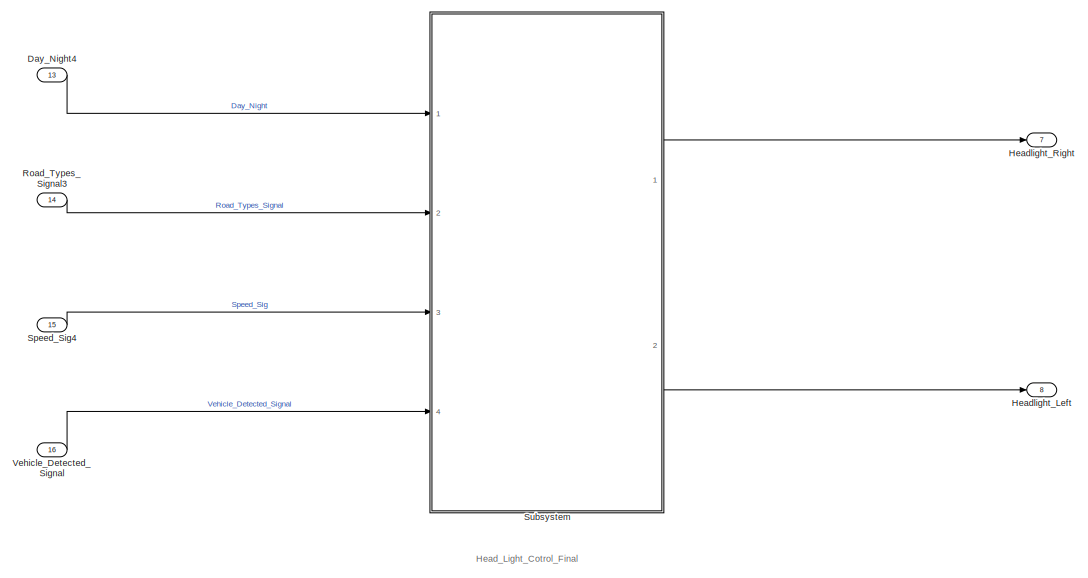
[diagram: root canvas - part 1/5, top center region]
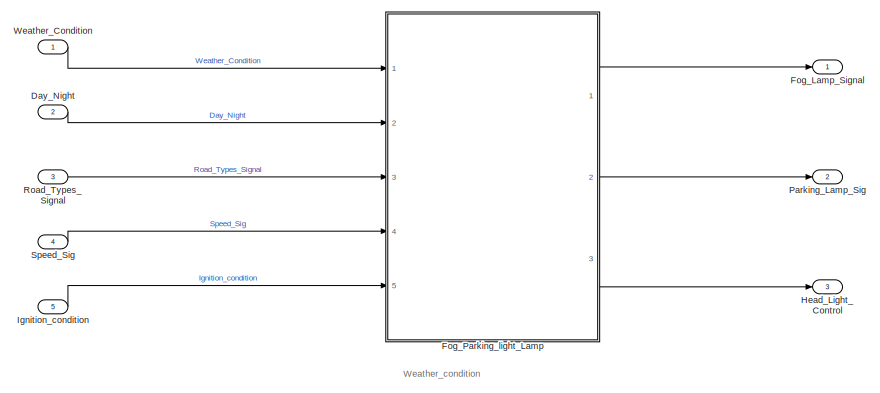
[diagram: root canvas - part 2/5, top left region]
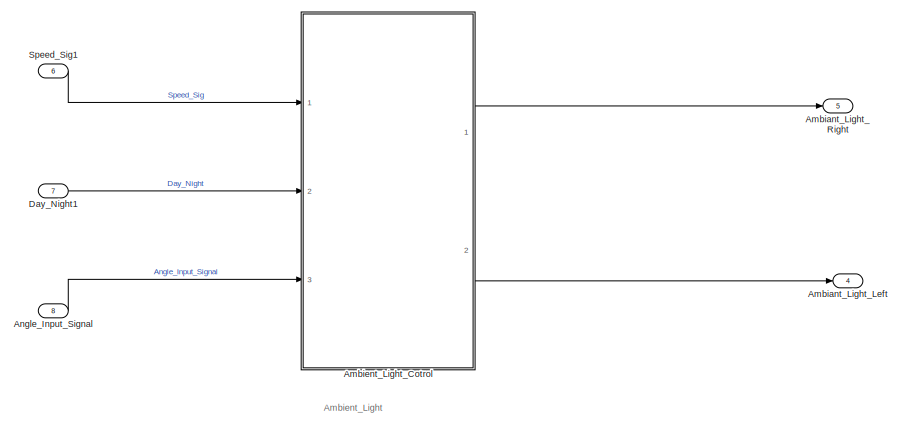
[diagram: root canvas - part 3/5, middle left region]
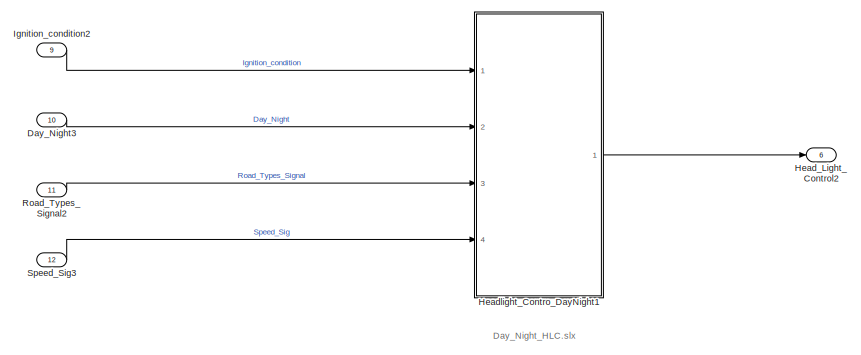
[diagram: root canvas - part 4/5, central region]
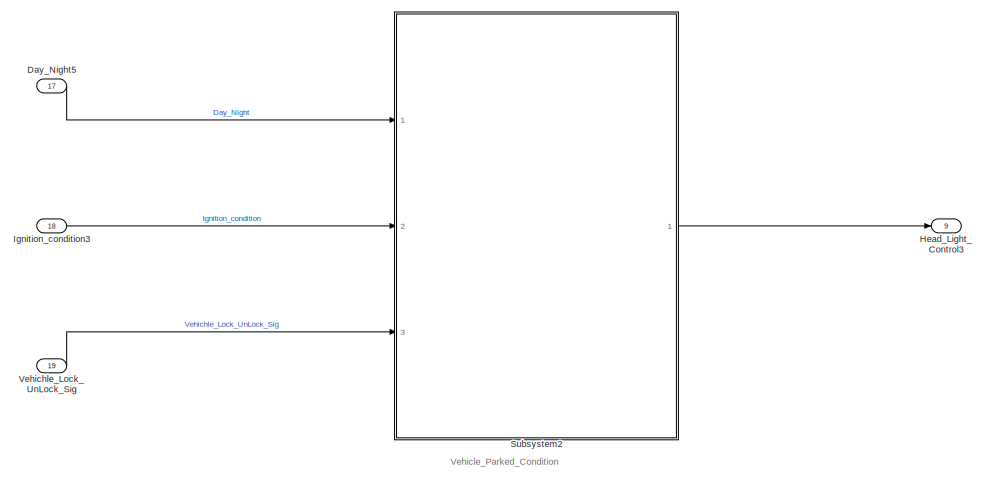
[diagram: root canvas - part 5/5, bottom right region]
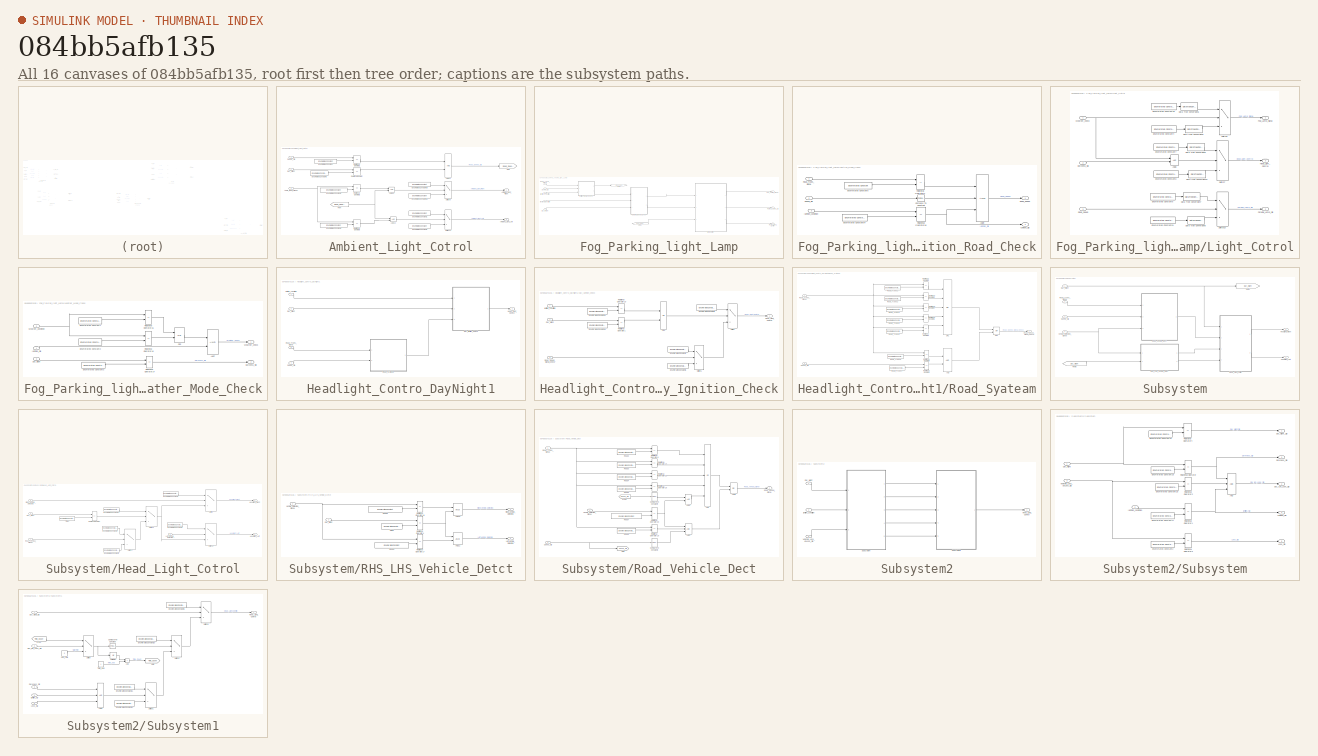
[diagram: thumbnail index - all 16 canvases of the model, root first then tree order]
MODEL slx_084bb5afb135
KIND model
CONFIG AbsTol = auto
CONFIG EnableMultiTasking = off
CONFIG FixedStep = auto
CONFIG MaxStep = auto
CONFIG MinStep = auto
CONFIG RelTol = 1e-3
CONFIG SampleTimeConstraint = Unconstrained
CONFIG Solver = VariableStepAuto
CONFIG SolverName = VariableStepAuto
CONFIG StartTime = 0.0
CONFIG StopTime = 10.0
BLOCK [Outport] Ambiant_Light_Left
  Port = 4
BLOCK [Outport] Ambiant_Light_Right
  Port = 5
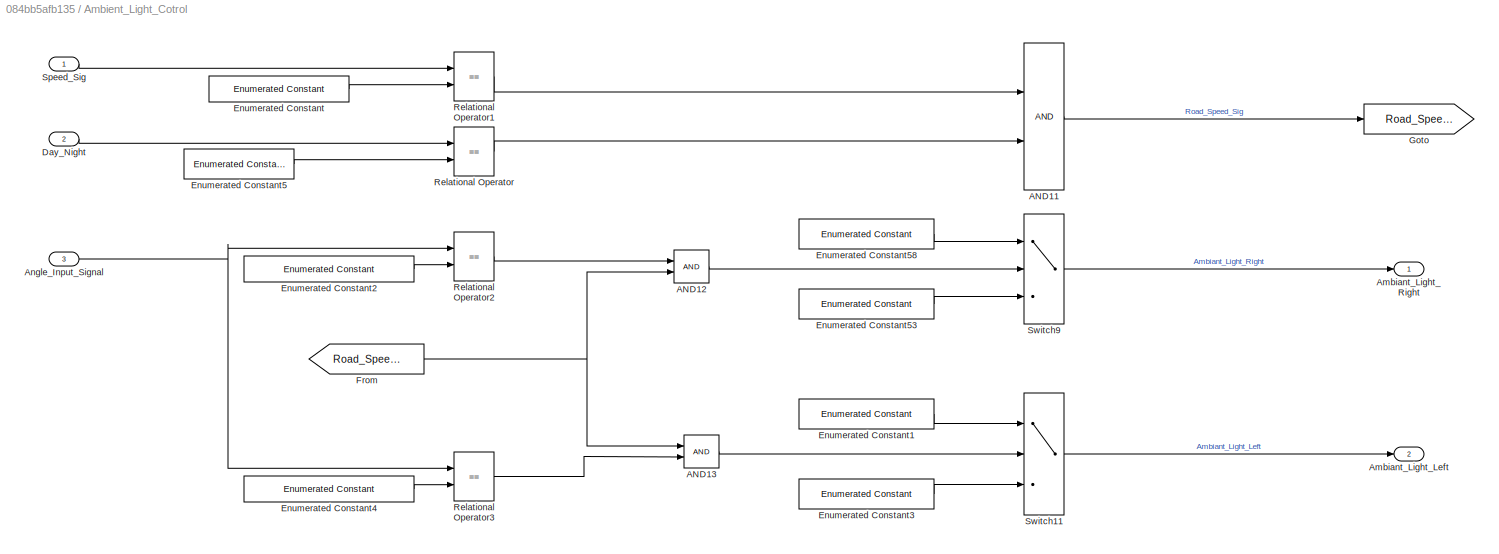
BLOCK [SubSystem] Ambient_Light_Cotrol
  Description = This System is use for cotrol abbiant Light Of cars and other havey loded vehicles
  Ports = [3, 2]
  RequestExecContextInheritance = off
BLOCK [Logic] Ambient_Light_Cotrol/AND11
  AllPortsSameDT = off
  Ports = [2, 1]
BLOCK [Logic] Ambient_Light_Cotrol/AND12
  AllPortsSameDT = off
  Ports = [2, 1]
BLOCK [Logic] Ambient_Light_Cotrol/AND13
  AllPortsSameDT = off
  Ports = [2, 1]
BLOCK [Outport] Ambient_Light_Cotrol/Ambiant_Light_Left
  Port = 2
BLOCK [Outport] Ambient_Light_Cotrol/Ambiant_Light_Right
BLOCK [Inport] Ambient_Light_Cotrol/Angle_Input_Signal
  Port = 3
BLOCK [Inport] Ambient_Light_Cotrol/Day_Night
  Port = 2
BLOCK [Reference] Ambient_Light_Cotrol/Enumerated Constant  REF=simulink/Sources/Enumerated
Constant
  Ports = [0, 1]
  SourceBlock = simulink/Sources/Enumerated\nConstant
  SourceProductBaseCode = SL
  SourceType = Enumerated Constant
BLOCK [Reference] Ambient_Light_Cotrol/Enumerated Constant1  REF=simulink/Sources/Enumerated
Constant
  Ports = [0, 1]
  SourceBlock = simulink/Sources/Enumerated\nConstant
  SourceProductBaseCode = SL
  SourceType = Enumerated Constant
BLOCK [Reference] Ambient_Light_Cotrol/Enumerated Constant2  REF=simulink/Sources/Enumerated
Constant
  Ports = [0, 1]
  SourceBlock = simulink/Sources/Enumerated\nConstant
  SourceProductBaseCode = SL
  SourceType = Enumerated Constant
BLOCK [Reference] Ambient_Light_Cotrol/Enumerated Constant3  REF=simulink/Sources/Enumerated
Constant
  Ports = [0, 1]
  SourceBlock = simulink/Sources/Enumerated\nConstant
  SourceProductBaseCode = SL
  SourceType = Enumerated Constant
BLOCK [Reference] Ambient_Light_Cotrol/Enumerated Constant4  REF=simulink/Sources/Enumerated
Constant
  Ports = [0, 1]
  SourceBlock = simulink/Sources/Enumerated\nConstant
  SourceProductBaseCode = SL
  SourceType = Enumerated Constant
BLOCK [Reference] Ambient_Light_Cotrol/Enumerated Constant5  REF=simulink/Sources/Enumerated
Constant
  Ports = [0, 1]
  SourceBlock = simulink/Sources/Enumerated\nConstant
  SourceProductBaseCode = SL
  SourceType = Enumerated Constant
BLOCK [Reference] Ambient_Light_Cotrol/Enumerated Constant53  REF=simulink/Sources/Enumerated
Constant
  Ports = [0, 1]
  SourceBlock = simulink/Sources/Enumerated\nConstant
  SourceProductBaseCode = SL
  SourceType = Enumerated Constant
BLOCK [Reference] Ambient_Light_Cotrol/Enumerated Constant58  REF=simulink/Sources/Enumerated
Constant
  Ports = [0, 1]
  SourceBlock = simulink/Sources/Enumerated\nConstant
  SourceProductBaseCode = SL
  SourceType = Enumerated Constant
BLOCK [From] Ambient_Light_Cotrol/From
  GotoTag = Road_Speed_Sig
BLOCK [Goto] Ambient_Light_Cotrol/Goto
  GotoTag = Road_Speed_Sig
BLOCK [RelationalOperator] Ambient_Light_Cotrol/Relational Operator
  InputSameDT = off
  Operator = ==
  OutDataTypeStr = boolean
  Ports = [2, 1]
  RndMeth = Simplest
BLOCK [RelationalOperator] Ambient_Light_Cotrol/Relational Operator1
  InputSameDT = off
  Operator = ==
  OutDataTypeStr = boolean
  Ports = [2, 1]
  RndMeth = Simplest
BLOCK [RelationalOperator] Ambient_Light_Cotrol/Relational Operator2
  InputSameDT = off
  Operator = ==
  OutDataTypeStr = boolean
  Ports = [2, 1]
  RndMeth = Simplest
BLOCK [RelationalOperator] Ambient_Light_Cotrol/Relational Operator3
  InputSameDT = off
  Operator = ==
  Ports = [2, 1]
  RndMeth = Simplest
BLOCK [Inport] Ambient_Light_Cotrol/Speed_Sig
BLOCK [Switch] Ambient_Light_Cotrol/Switch11
  Criteria = u2 ~= 0
  InputSameDT = off
  OutDataTypeStr = Inherit: Inherit via back propagation
  SaturateOnIntegerOverflow = off
BLOCK [Switch] Ambient_Light_Cotrol/Switch9
  Criteria = u2 ~= 0
  InputSameDT = off
  OutDataTypeStr = Inherit: Inherit via back propagation
  SaturateOnIntegerOverflow = off
BLOCK [Inport] Angle_Input_Signal
  Port = 8
BLOCK [Inport] Day_Night
  Port = 2
BLOCK [Inport] Day_Night1
  Port = 7
BLOCK [Inport] Day_Night3
  Port = 10
BLOCK [Inport] Day_Night4
  Port = 13
BLOCK [Inport] Day_Night5
  Port = 17
BLOCK [Outport] Fog_Lamp_Signal
BLOCK [SubSystem] Fog_Parking_light_Lamp
  Description = Cotrol of Fog lamp_Parking Light and hedlight in differant modes
  Ports = [5, 3]
  RequestExecContextInheritance = off
BLOCK [Inport] Fog_Parking_light_Lamp/Day_Night
  Port = 2
BLOCK [Outport] Fog_Parking_light_Lamp/Fog_Lamp_Signal
BLOCK [From] Fog_Parking_light_Lamp/From1
  GotoTag = Road_Speed
BLOCK [Goto] Fog_Parking_light_Lamp/Goto2
  GotoTag = Road_Speed
BLOCK [Outport] Fog_Parking_light_Lamp/Head_Light_Control
  Port = 3
BLOCK [SubSystem] Fog_Parking_light_Lamp/Ignition_Road_Check
  Description = ignition and Road_Check
  Ports = [3, 2]
  RequestExecContextInheritance = off
BLOCK [Logic] Fog_Parking_light_Lamp/Ignition_Road_Check/AND9
  AllPortsSameDT = off
  Inputs = 3
  OutDataTypeStr = boolean
  Ports = [3, 1]
BLOCK [Reference] Fog_Parking_light_Lamp/Ignition_Road_Check/Compare To Constant  REF=simulink/Logic and Bit
Operations/Compare
To Constant
  Ports = [1, 1]
  SourceBlock = simulink/Logic and Bit\nOperations/Compare\nTo Constant
  SourceProductBaseCode = SL
  SourceType = Compare To Constant
BLOCK [Reference] Fog_Parking_light_Lamp/Ignition_Road_Check/Enumerated Constant54  REF=simulink/Sources/Enumerated
Constant
  Ports = [0, 1]
  SourceBlock = simulink/Sources/Enumerated\nConstant
  SourceProductBaseCode = SL
  SourceType = Enumerated Constant
BLOCK [Reference] Fog_Parking_light_Lamp/Ignition_Road_Check/Enumerated Constant6  REF=simulink/Sources/Enumerated
Constant
  Ports = [0, 1]
  SourceBlock = simulink/Sources/Enumerated\nConstant
  SourceProductBaseCode = SL
  SourceType = Enumerated Constant
BLOCK [Outport] Fog_Parking_light_Lamp/Ignition_Road_Check/Ignition_Sig
  Port = 2
BLOCK [Inport] Fog_Parking_light_Lamp/Ignition_Road_Check/Ignition_condition
  Port = 3
BLOCK [RelationalOperator] Fog_Parking_light_Lamp/Ignition_Road_Check/Relational Operator1
  InputSameDT = off
  Operator = ~=
  OutDataTypeStr = boolean
  Ports = [2, 1]
  RndMeth = Simplest
BLOCK [RelationalOperator] Fog_Parking_light_Lamp/Ignition_Road_Check/Relational Operator18
  InputSameDT = off
  Operator = ==
  OutDataTypeStr = boolean
  Ports = [2, 1]
  RndMeth = Simplest
BLOCK [Outport] Fog_Parking_light_Lamp/Ignition_Road_Check/Road_Speed
BLOCK [Inport] Fog_Parking_light_Lamp/Ignition_Road_Check/Road_Types_Signal
BLOCK [Inport] Fog_Parking_light_Lamp/Ignition_Road_Check/Speed_Sig
  Port = 2
BLOCK [Inport] Fog_Parking_light_Lamp/Ignition_condition
  Port = 5
BLOCK [SubSystem] Fog_Parking_light_Lamp/Light_Cotrol
  Description = it control the fog parking and head light
  Ports = [3, 3]
  RequestExecContextInheritance = off
BLOCK [Logic] Fog_Parking_light_Lamp/Light_Cotrol/AND8
  AllPortsSameDT = off
  OutDataTypeStr = boolean
  Ports = [2, 1]
BLOCK [Inport] Fog_Parking_light_Lamp/Light_Cotrol/Darkness_Sig
  Port = 2
BLOCK [DataTypeConversion] Fog_Parking_light_Lamp/Light_Cotrol/Data Type Conversion10
  RndMeth = Floor
  SaturateOnIntegerOverflow = off
BLOCK [DataTypeConversion] Fog_Parking_light_Lamp/Light_Cotrol/Data Type Conversion5
  RndMeth = Floor
  SaturateOnIntegerOverflow = off
BLOCK [DataTypeConversion] Fog_Parking_light_Lamp/Light_Cotrol/Data Type Conversion6
  RndMeth = Floor
  SaturateOnIntegerOverflow = off
BLOCK [DataTypeConversion] Fog_Parking_light_Lamp/Light_Cotrol/Data Type Conversion7
  RndMeth = Floor
  SaturateOnIntegerOverflow = off
BLOCK [DataTypeConversion] Fog_Parking_light_Lamp/Light_Cotrol/Data Type Conversion8
  RndMeth = Floor
  SaturateOnIntegerOverflow = off
BLOCK [DataTypeConversion] Fog_Parking_light_Lamp/Light_Cotrol/Data Type Conversion9
  RndMeth = Floor
  SaturateOnIntegerOverflow = off
BLOCK [Reference] Fog_Parking_light_Lamp/Light_Cotrol/Enumerated Constant4  REF=simulink/Sources/Enumerated
Constant
  Ports = [0, 1]
  SourceBlock = simulink/Sources/Enumerated\nConstant
  SourceProductBaseCode = SL
  SourceType = Enumerated Constant
BLOCK [Reference] Fog_Parking_light_Lamp/Light_Cotrol/Enumerated Constant48  REF=simulink/Sources/Enumerated
Constant
  Ports = [0, 1]
  SourceBlock = simulink/Sources/Enumerated\nConstant
  SourceProductBaseCode = SL
  SourceType = Enumerated Constant
BLOCK [Reference] Fog_Parking_light_Lamp/Light_Cotrol/Enumerated Constant5  REF=simulink/Sources/Enumerated
Constant
  Ports = [0, 1]
  SourceBlock = simulink/Sources/Enumerated\nConstant
  SourceProductBaseCode = SL
  SourceType = Enumerated Constant
BLOCK [Reference] Fog_Parking_light_Lamp/Light_Cotrol/Enumerated Constant51  REF=simulink/Sources/Enumerated
Constant
  Ports = [0, 1]
  SourceBlock = simulink/Sources/Enumerated\nConstant
  SourceProductBaseCode = SL
  SourceType = Enumerated Constant
BLOCK [Reference] Fog_Parking_light_Lamp/Light_Cotrol/Enumerated Constant7  REF=simulink/Sources/Enumerated
Constant
  Ports = [0, 1]
  SourceBlock = simulink/Sources/Enumerated\nConstant
  SourceProductBaseCode = SL
  SourceType = Enumerated Constant
BLOCK [Reference] Fog_Parking_light_Lamp/Light_Cotrol/Enumerated Constant8  REF=simulink/Sources/Enumerated
Constant
  Ports = [0, 1]
  SourceBlock = simulink/Sources/Enumerated\nConstant
  SourceProductBaseCode = SL
  SourceType = Enumerated Constant
BLOCK [Outport] Fog_Parking_light_Lamp/Light_Cotrol/Fog_Lamp_Signal
BLOCK [Outport] Fog_Parking_light_Lamp/Light_Cotrol/Head_Light_Control
  Port = 3
BLOCK [Outport] Fog_Parking_light_Lamp/Light_Cotrol/Parking_Lamp_Sig
  Port = 2
BLOCK [Inport] Fog_Parking_light_Lamp/Light_Cotrol/Road_Speed
  Port = 3
BLOCK [Switch] Fog_Parking_light_Lamp/Light_Cotrol/Switch10
  Criteria = u2 ~= 0
  InputSameDT = off
  OutDataTypeStr = Inherit: Inherit via back propagation
  SaturateOnIntegerOverflow = off
BLOCK [Switch] Fog_Parking_light_Lamp/Light_Cotrol/Switch7
  Criteria = u2 ~= 0
  InputSameDT = off
  OutDataTypeStr = Inherit: Inherit via back propagation
  SaturateOnIntegerOverflow = off
BLOCK [Switch] Fog_Parking_light_Lamp/Light_Cotrol/Switch8
  Criteria = u2 ~= 0
  InputSameDT = off
  OutDataTypeStr = Inherit: Inherit via back propagation
  SaturateOnIntegerOverflow = off
BLOCK [Inport] Fog_Parking_light_Lamp/Light_Cotrol/Weather_Check
BLOCK [Outport] Fog_Parking_light_Lamp/Parking_Lamp_Sig
  Port = 2
BLOCK [Inport] Fog_Parking_light_Lamp/Road_Types_Signal
  Port = 3
BLOCK [Inport] Fog_Parking_light_Lamp/Speed_Sig
  Port = 4
BLOCK [Inport] Fog_Parking_light_Lamp/Weather_Condition
BLOCK [SubSystem] Fog_Parking_light_Lamp/Weather_Mode_Check
  Description = it check weather and raod conditions
  Ports = [3, 2]
  RequestExecContextInheritance = off
BLOCK [Logic] Fog_Parking_light_Lamp/Weather_Mode_Check/AND7
  AllPortsSameDT = off
  OutDataTypeStr = boolean
  Ports = [2, 1]
BLOCK [Outport] Fog_Parking_light_Lamp/Weather_Mode_Check/Darkness_Sig
  Port = 2
BLOCK [Inport] Fog_Parking_light_Lamp/Weather_Mode_Check/Day_Night
  Port = 3
BLOCK [Reference] Fog_Parking_light_Lamp/Weather_Mode_Check/Enumerated Constant1  REF=simulink/Sources/Enumerated
Constant
  Ports = [0, 1]
  SourceBlock = simulink/Sources/Enumerated\nConstant
  SourceProductBaseCode = SL
  SourceType = Enumerated Constant
BLOCK [Reference] Fog_Parking_light_Lamp/Weather_Mode_Check/Enumerated Constant2  REF=simulink/Sources/Enumerated
Constant
  Ports = [0, 1]
  SourceBlock = simulink/Sources/Enumerated\nConstant
  SourceProductBaseCode = SL
  SourceType = Enumerated Constant
BLOCK [Reference] Fog_Parking_light_Lamp/Weather_Mode_Check/Enumerated Constant3  REF=simulink/Sources/Enumerated
Constant
  Ports = [0, 1]
  SourceBlock = simulink/Sources/Enumerated\nConstant
  SourceProductBaseCode = SL
  SourceType = Enumerated Constant
BLOCK [Inport] Fog_Parking_light_Lamp/Weather_Mode_Check/Ignition_Sig
BLOCK [Logic] Fog_Parking_light_Lamp/Weather_Mode_Check/OR2
  AllPortsSameDT = off
  Operator = OR
  OutDataTypeStr = boolean
  Ports = [2, 1]
BLOCK [RelationalOperator] Fog_Parking_light_Lamp/Weather_Mode_Check/Relational Operator14
  InputSameDT = off
  Operator = ==
  OutDataTypeStr = boolean
  Ports = [2, 1]
  RndMeth = Simplest
BLOCK [RelationalOperator] Fog_Parking_light_Lamp/Weather_Mode_Check/Relational Operator15
  InputSameDT = off
  Operator = ==
  OutDataTypeStr = boolean
  Ports = [2, 1]
  RndMeth = Simplest
BLOCK [RelationalOperator] Fog_Parking_light_Lamp/Weather_Mode_Check/Relational Operator16
  InputSameDT = off
  Operator = ==
  OutDataTypeStr = boolean
  Ports = [2, 1]
  RndMeth = Simplest
BLOCK [Outport] Fog_Parking_light_Lamp/Weather_Mode_Check/Weather_Check
BLOCK [Inport] Fog_Parking_light_Lamp/Weather_Mode_Check/Weather_Condition
  Port = 2
BLOCK [Outport] Head_Light_Control
  Port = 3
BLOCK [Outport] Head_Light_Control2
  Port = 6
BLOCK [Outport] Head_Light_Control3
  Port = 9
BLOCK [SubSystem] Headlight_Contro_DayNight1
  Description = testing_dayNight_Control of the cars
  Ports = [4, 1]
  RequestExecContextInheritance = off
BLOCK [SubSystem] Headlight_Contro_DayNight1/Day_Ignition_Check
  Description = check road and ignition condition
  Ports = [3, 1]
  RequestExecContextInheritance = off
BLOCK [Inport] Headlight_Contro_DayNight1/Day_Ignition_Check/Day_Night
  Port = 2
BLOCK [Reference] Headlight_Contro_DayNight1/Day_Ignition_Check/Enumerated Constant15  REF=simulink/Sources/Enumerated
Constant
  Ports = [0, 1]
  SourceBlock = simulink/Sources/Enumerated\nConstant
  SourceProductBaseCode = SL
  SourceType = Enumerated Constant
BLOCK [Reference] Headlight_Contro_DayNight1/Day_Ignition_Check/Enumerated Constant16  REF=simulink/Sources/Enumerated
Constant
  Ports = [0, 1]
  SourceBlock = simulink/Sources/Enumerated\nConstant
  SourceProductBaseCode = SL
  SourceType = Enumerated Constant
BLOCK [Reference] Headlight_Contro_DayNight1/Day_Ignition_Check/Enumerated Constant2  REF=simulink/Sources/Enumerated
Constant
  Ports = [0, 1]
  SourceBlock = simulink/Sources/Enumerated\nConstant
  SourceProductBaseCode = SL
  SourceType = Enumerated Constant
BLOCK [Reference] Headlight_Contro_DayNight1/Day_Ignition_Check/Enumerated Constant5  REF=simulink/Sources/Enumerated
Constant
  Ports = [0, 1]
  SourceBlock = simulink/Sources/Enumerated\nConstant
  SourceProductBaseCode = SL
  SourceType = Enumerated Constant
BLOCK [Reference] Headlight_Contro_DayNight1/Day_Ignition_Check/Enumerated Constant6  REF=simulink/Sources/Enumerated
Constant
  Ports = [0, 1]
  SourceBlock = simulink/Sources/Enumerated\nConstant
  SourceProductBaseCode = SL
  SourceType = Enumerated Constant
BLOCK [Outport] Headlight_Contro_DayNight1/Day_Ignition_Check/Head_Light_Control
BLOCK [Inport] Headlight_Contro_DayNight1/Day_Ignition_Check/Ignition_condition
BLOCK [Logic] Headlight_Contro_DayNight1/Day_Ignition_Check/OR3
  AllPortsSameDT = off
  Operator = OR
  OutDataTypeStr = boolean
  Ports = [2, 1]
BLOCK [RelationalOperator] Headlight_Contro_DayNight1/Day_Ignition_Check/Relational Operator1
  InputSameDT = off
  Operator = ==
  OutDataTypeStr = boolean
  Ports = [2, 1]
  RndMeth = Simplest
BLOCK [RelationalOperator] Headlight_Contro_DayNight1/Day_Ignition_Check/Relational Operator19
  InputSameDT = off
  Operator = ==
  OutDataTypeStr = boolean
  Ports = [2, 1]
  RndMeth = Simplest
BLOCK [Inport] Headlight_Contro_DayNight1/Day_Ignition_Check/Road_Speed_Signal_Check
  Port = 3
BLOCK [Switch] Headlight_Contro_DayNight1/Day_Ignition_Check/Switch
  Criteria = u2 ~= 0
  InputSameDT = off
  OutDataTypeStr = Inherit: Inherit via back propagation
  SaturateOnIntegerOverflow = off
BLOCK [Switch] Headlight_Contro_DayNight1/Day_Ignition_Check/Switch1
  Criteria = u2 ~= 0
  InputSameDT = off
  SaturateOnIntegerOverflow = off
BLOCK [Inport] Headlight_Contro_DayNight1/Day_Night
  Port = 2
BLOCK [Outport] Headlight_Contro_DayNight1/Head_Light_Control
BLOCK [Inport] Headlight_Contro_DayNight1/Ignition_condition
BLOCK [SubSystem] Headlight_Contro_DayNight1/Road_Syateam
  Description = Road check condition
  Ports = [2, 1]
  RequestExecContextInheritance = off
BLOCK [Logic] Headlight_Contro_DayNight1/Road_Syateam/AND
  AllPortsSameDT = off
  OutDataTypeStr = boolean
  Ports = [2, 1]
BLOCK [Logic] Headlight_Contro_DayNight1/Road_Syateam/OR1
  AllPortsSameDT = off
  Inputs = 5
  Operator = OR
  OutDataTypeStr = boolean
  Ports = [5, 1]
BLOCK [Logic] Headlight_Contro_DayNight1/Road_Syateam/OR2
  AllPortsSameDT = off
  Operator = OR
  OutDataTypeStr = boolean
  Ports = [2, 1]
BLOCK [RelationalOperator] Headlight_Contro_DayNight1/Road_Syateam/Relational Operator1
  InputSameDT = off
  Operator = ==
  OutDataTypeStr = boolean
  Ports = [2, 1]
  RndMeth = Simplest
BLOCK [RelationalOperator] Headlight_Contro_DayNight1/Road_Syateam/Relational Operator2
  InputSameDT = off
  Operator = ==
  OutDataTypeStr = boolean
  Ports = [2, 1]
  RndMeth = Simplest
BLOCK [RelationalOperator] Headlight_Contro_DayNight1/Road_Syateam/Relational Operator3
  InputSameDT = off
  Operator = ==
  OutDataTypeStr = boolean
  Ports = [2, 1]
  RndMeth = Simplest
BLOCK [RelationalOperator] Headlight_Contro_DayNight1/Road_Syateam/Relational Operator4
  InputSameDT = off
  Operator = ==
  OutDataTypeStr = boolean
  Ports = [2, 1]
  RndMeth = Simplest
BLOCK [RelationalOperator] Headlight_Contro_DayNight1/Road_Syateam/Relational Operator5
  InputSameDT = off
  Operator = ==
  OutDataTypeStr = boolean
  Ports = [2, 1]
  RndMeth = Simplest
BLOCK [RelationalOperator] Headlight_Contro_DayNight1/Road_Syateam/Relational Operator6
  InputSameDT = off
  Operator = ==
  OutDataTypeStr = boolean
  Ports = [2, 1]
  RndMeth = Simplest
BLOCK [RelationalOperator] Headlight_Contro_DayNight1/Road_Syateam/Relational Operator7
  InputSameDT = off
  Operator = ==
  OutDataTypeStr = boolean
  Ports = [2, 1]
  RndMeth = Simplest
BLOCK [Outport] Headlight_Contro_DayNight1/Road_Syateam/Road_Speed_Signal_Check
BLOCK [Reference] Headlight_Contro_DayNight1/Road_Syateam/Road_Types1  REF=simulink/Sources/Enumerated
Constant
  Ports = [0, 1]
  SourceBlock = simulink/Sources/Enumerated\nConstant
  SourceProductBaseCode = SL
  SourceType = Enumerated Constant
BLOCK [Reference] Headlight_Contro_DayNight1/Road_Syateam/Road_Types2  REF=simulink/Sources/Enumerated
Constant
  Ports = [0, 1]
  SourceBlock = simulink/Sources/Enumerated\nConstant
  SourceProductBaseCode = SL
  SourceType = Enumerated Constant
BLOCK [Reference] Headlight_Contro_DayNight1/Road_Syateam/Road_Types3  REF=simulink/Sources/Enumerated
Constant
  Ports = [0, 1]
  SourceBlock = simulink/Sources/Enumerated\nConstant
  SourceProductBaseCode = SL
  SourceType = Enumerated Constant
BLOCK [Reference] Headlight_Contro_DayNight1/Road_Syateam/Road_Types4  REF=simulink/Sources/Enumerated
Constant
  Ports = [0, 1]
  SourceBlock = simulink/Sources/Enumerated\nConstant
  SourceProductBaseCode = SL
  SourceType = Enumerated Constant
BLOCK [Reference] Headlight_Contro_DayNight1/Road_Syateam/Road_Types5  REF=simulink/Sources/Enumerated
Constant
  Ports = [0, 1]
  SourceBlock = simulink/Sources/Enumerated\nConstant
  SourceProductBaseCode = SL
  SourceType = Enumerated Constant
BLOCK [Reference] Headlight_Contro_DayNight1/Road_Syateam/Road_Types6  REF=simulink/Sources/Enumerated
Constant
  Ports = [0, 1]
  SourceBlock = simulink/Sources/Enumerated\nConstant
  SourceProductBaseCode = SL
  SourceType = Enumerated Constant
BLOCK [Reference] Headlight_Contro_DayNight1/Road_Syateam/Road_Types7  REF=simulink/Sources/Enumerated
Constant
  Ports = [0, 1]
  SourceBlock = simulink/Sources/Enumerated\nConstant
  SourceProductBaseCode = SL
  SourceType = Enumerated Constant
BLOCK [Inport] Headlight_Contro_DayNight1/Road_Syateam/Road_Types_Signal
BLOCK [Inport] Headlight_Contro_DayNight1/Road_Syateam/Speed_Sig
  Port = 2
BLOCK [Inport] Headlight_Contro_DayNight1/Road_Types_Signal
  Port = 3
BLOCK [Inport] Headlight_Contro_DayNight1/Speed_Sig
  Port = 4
BLOCK [Outport] Headlight_Left
  Port = 8
BLOCK [Outport] Headlight_Right
  Port = 7
BLOCK [Inport] Ignition_condition
  Port = 5
BLOCK [Inport] Ignition_condition2
  Port = 9
BLOCK [Inport] Ignition_condition3
  Port = 18
BLOCK [Outport] Parking_Lamp_Sig
  Port = 2
BLOCK [Inport] Road_Types_Signal
  Port = 3
BLOCK [Inport] Road_Types_Signal2
  Port = 11
BLOCK [Inport] Road_Types_Signal3
  Port = 14
BLOCK [Inport] Speed_Sig
  Port = 4
BLOCK [Inport] Speed_Sig1
  Port = 6
BLOCK [Inport] Speed_Sig3
  Port = 12
BLOCK [Inport] Speed_Sig4
  Port = 15
BLOCK [SubSystem] Subsystem
  Ports = [4, 2]
  RequestExecContextInheritance = off
BLOCK [Inport] Subsystem/Day_Night
BLOCK [From] Subsystem/From8
  GotoTag = Day_Night
BLOCK [Goto] Subsystem/Goto4
  GotoTag = Day_Night
BLOCK [SubSystem] Subsystem/Head_Light_Cotrol
  Ports = [4, 2]
  RequestExecContextInheritance = off
BLOCK [Inport] Subsystem/Head_Light_Cotrol/Day_Night
BLOCK [Reference] Subsystem/Head_Light_Cotrol/Enumerated Constant1  REF=simulink/Sources/Enumerated
Constant
  Ports = [0, 1]
  SourceBlock = simulink/Sources/Enumerated\nConstant
  SourceProductBaseCode = SL
  SourceType = Enumerated Constant
BLOCK [Reference] Subsystem/Head_Light_Cotrol/Enumerated Constant17  REF=simulink/Sources/Enumerated
Constant
  Ports = [0, 1]
  SourceBlock = simulink/Sources/Enumerated\nConstant
  SourceProductBaseCode = SL
  SourceType = Enumerated Constant
BLOCK [Reference] Subsystem/Head_Light_Cotrol/Enumerated Constant2  REF=simulink/Sources/Enumerated
Constant
  Ports = [0, 1]
  SourceBlock = simulink/Sources/Enumerated\nConstant
  SourceProductBaseCode = SL
  SourceType = Enumerated Constant
BLOCK [Reference] Subsystem/Head_Light_Cotrol/Enumerated Constant3  REF=simulink/Sources/Enumerated
Constant
  Ports = [0, 1]
  SourceBlock = simulink/Sources/Enumerated\nConstant
  SourceProductBaseCode = SL
  SourceType = Enumerated Constant
BLOCK [Reference] Subsystem/Head_Light_Cotrol/Enumerated Constant4  REF=simulink/Sources/Enumerated
Constant
  Ports = [0, 1]
  SourceBlock = simulink/Sources/Enumerated\nConstant
  SourceProductBaseCode = SL
  SourceType = Enumerated Constant
BLOCK [Outport] Subsystem/Head_Light_Cotrol/Headlight_Left
  Port = 2
BLOCK [Outport] Subsystem/Head_Light_Cotrol/Headlight_Right
BLOCK [Inport] Subsystem/Head_Light_Cotrol/Left_Vehicle_Detected
  Port = 4
BLOCK [RelationalOperator] Subsystem/Head_Light_Cotrol/Relational Operator
  InputSameDT = off
  Operator = ==
  OutDataTypeStr = boolean
  Ports = [2, 1]
  RndMeth = Simplest
BLOCK [Inport] Subsystem/Head_Light_Cotrol/Right_Vehicle_Detected
  Port = 3
BLOCK [Inport] Subsystem/Head_Light_Cotrol/Road_Vehical_Signal
  Port = 2
BLOCK [Switch] Subsystem/Head_Light_Cotrol/Switch
  Criteria = u2 ~= 0
  InputSameDT = off
  OutDataTypeStr = Inherit: Inherit via back propagation
  SaturateOnIntegerOverflow = off
BLOCK [Switch] Subsystem/Head_Light_Cotrol/Switch2
  Criteria = u2 ~= 0
  InputSameDT = off
  OutDataTypeStr = Inherit: Inherit via back propagation
  SaturateOnIntegerOverflow = off
BLOCK [Switch] Subsystem/Head_Light_Cotrol/Switch3
  Criteria = u2 ~= 0
  InputSameDT = off
  SaturateOnIntegerOverflow = off
BLOCK [Switch] Subsystem/Head_Light_Cotrol/Switch7
  Criteria = u2 ~= 0
  InputSameDT = off
  SaturateOnIntegerOverflow = off
BLOCK [Reference] Subsystem/Head_Light_Cotrol/Time2  REF=simulink/Sources/Enumerated
Constant
  Ports = [0, 1]
  SourceBlock = simulink/Sources/Enumerated\nConstant
  SourceProductBaseCode = SL
  SourceType = Enumerated Constant
BLOCK [Outport] Subsystem/Headlight_Left
  Port = 2
BLOCK [Outport] Subsystem/Headlight_Right
BLOCK [SubSystem] Subsystem/RHS_LHS_Vehicle_Detct
  Ports = [2, 2]
  RequestExecContextInheritance = off
BLOCK [Logic] Subsystem/RHS_LHS_Vehicle_Detct/AND10
  AllPortsSameDT = off
  OutDataTypeStr = boolean
  Ports = [2, 1]
BLOCK [Logic] Subsystem/RHS_LHS_Vehicle_Detct/AND11
  AllPortsSameDT = off
  OutDataTypeStr = boolean
  Ports = [2, 1]
BLOCK [Inport] Subsystem/RHS_LHS_Vehicle_Detct/Day_Night
  Port = 2
BLOCK [Outport] Subsystem/RHS_LHS_Vehicle_Detct/Left_Vehicle_Detected
  Port = 2
BLOCK [RelationalOperator] Subsystem/RHS_LHS_Vehicle_Detct/Relational Operator1
  InputSameDT = off
  Operator = ==
  OutDataTypeStr = boolean
  Ports = [2, 1]
  RndMeth = Simplest
BLOCK [RelationalOperator] Subsystem/RHS_LHS_Vehicle_Detct/Relational Operator17
  InputSameDT = off
  Operator = ==
  OutDataTypeStr = boolean
  Ports = [2, 1]
  RndMeth = Simplest
BLOCK [RelationalOperator] Subsystem/RHS_LHS_Vehicle_Detct/Relational Operator18
  InputSameDT = off
  Operator = ==
  OutDataTypeStr = boolean
  Ports = [2, 1]
  RndMeth = Simplest
BLOCK [Outport] Subsystem/RHS_LHS_Vehicle_Detct/Right_Vehicle_Detected
BLOCK [Reference] Subsystem/RHS_LHS_Vehicle_Detct/Road8  REF=simulink/Sources/Enumerated
Constant
  Ports = [0, 1]
  SourceBlock = simulink/Sources/Enumerated\nConstant
  SourceProductBaseCode = SL
  SourceType = Enumerated Constant
BLOCK [Reference] Subsystem/RHS_LHS_Vehicle_Detct/Road9  REF=simulink/Sources/Enumerated
Constant
  Ports = [0, 1]
  SourceBlock = simulink/Sources/Enumerated\nConstant
  SourceProductBaseCode = SL
  SourceType = Enumerated Constant
BLOCK [Reference] Subsystem/RHS_LHS_Vehicle_Detct/Time3  REF=simulink/Sources/Enumerated
Constant
  Ports = [0, 1]
  SourceBlock = simulink/Sources/Enumerated\nConstant
  SourceProductBaseCode = SL
  SourceType = Enumerated Constant
BLOCK [Inport] Subsystem/RHS_LHS_Vehicle_Detct/Vehicle_Detected_Signal
BLOCK [Inport] Subsystem/Road_Types_Signal
  Port = 2
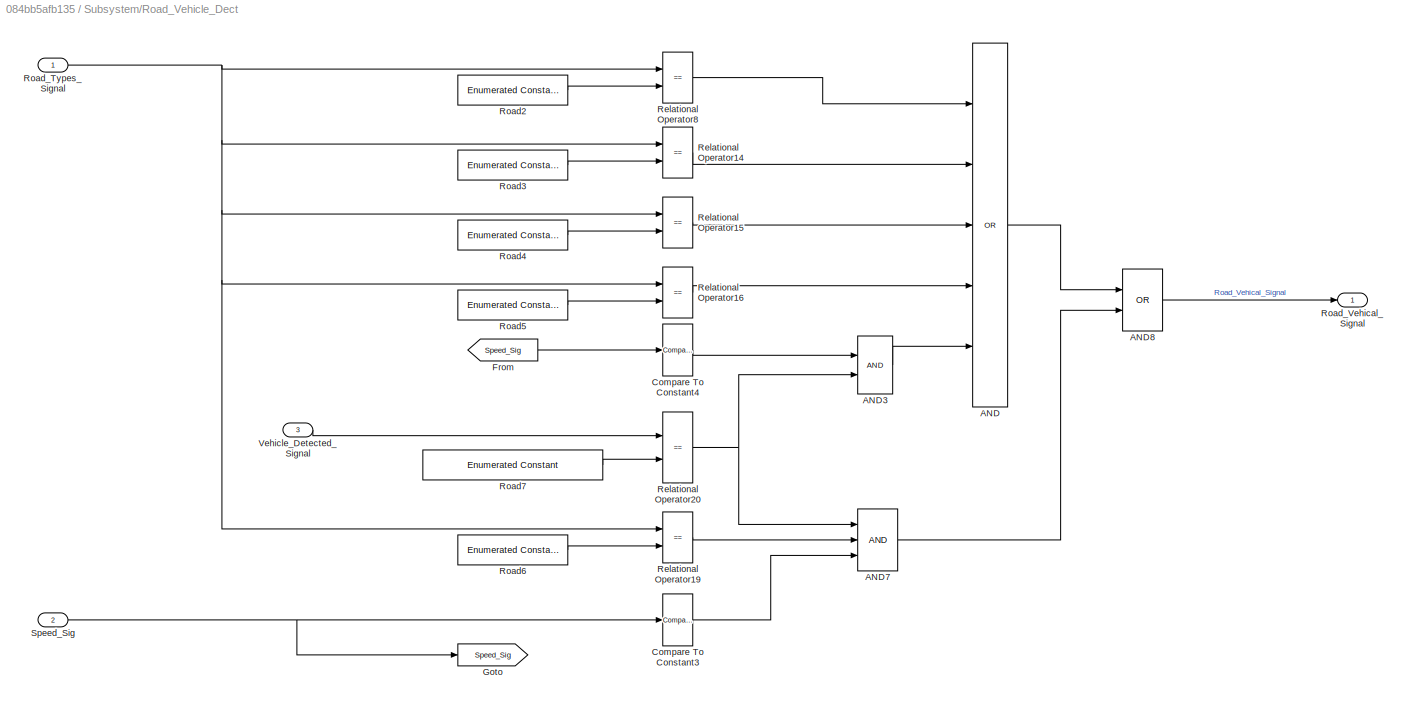
BLOCK [SubSystem] Subsystem/Road_Vehicle_Dect
  Ports = [3, 1]
  RequestExecContextInheritance = off
BLOCK [Logic] Subsystem/Road_Vehicle_Dect/AND
  AllPortsSameDT = off
  Inputs = 5
  Operator = OR
  OutDataTypeStr = boolean
  Ports = [5, 1]
BLOCK [Logic] Subsystem/Road_Vehicle_Dect/AND3
  AllPortsSameDT = off
  OutDataTypeStr = boolean
  Ports = [2, 1]
BLOCK [Logic] Subsystem/Road_Vehicle_Dect/AND7
  AllPortsSameDT = off
  Inputs = 3
  OutDataTypeStr = boolean
  Ports = [3, 1]
BLOCK [Logic] Subsystem/Road_Vehicle_Dect/AND8
  AllPortsSameDT = off
  Operator = OR
  OutDataTypeStr = boolean
  Ports = [2, 1]
BLOCK [Reference] Subsystem/Road_Vehicle_Dect/Compare To Constant3  REF=simulink/Logic and Bit
Operations/Compare
To Constant
  Ports = [1, 1]
  SourceBlock = simulink/Logic and Bit\nOperations/Compare\nTo Constant
  SourceProductBaseCode = SL
  SourceType = Compare To Constant
BLOCK [Reference] Subsystem/Road_Vehicle_Dect/Compare To Constant4  REF=simulink/Logic and Bit
Operations/Compare
To Constant
  Ports = [1, 1]
  SourceBlock = simulink/Logic and Bit\nOperations/Compare\nTo Constant
  SourceProductBaseCode = SL
  SourceType = Compare To Constant
BLOCK [From] Subsystem/Road_Vehicle_Dect/From
  GotoTag = Speed_Sig
BLOCK [Goto] Subsystem/Road_Vehicle_Dect/Goto
  GotoTag = Speed_Sig
BLOCK [RelationalOperator] Subsystem/Road_Vehicle_Dect/Relational Operator14
  InputSameDT = off
  Operator = ==
  OutDataTypeStr = boolean
  Ports = [2, 1]
  RndMeth = Simplest
BLOCK [RelationalOperator] Subsystem/Road_Vehicle_Dect/Relational Operator15
  InputSameDT = off
  Operator = ==
  OutDataTypeStr = boolean
  Ports = [2, 1]
  RndMeth = Simplest
BLOCK [RelationalOperator] Subsystem/Road_Vehicle_Dect/Relational Operator16
  InputSameDT = off
  Operator = ==
  OutDataTypeStr = boolean
  Ports = [2, 1]
  RndMeth = Simplest
BLOCK [RelationalOperator] Subsystem/Road_Vehicle_Dect/Relational Operator19
  InputSameDT = off
  Operator = ==
  OutDataTypeStr = boolean
  Ports = [2, 1]
  RndMeth = Simplest
BLOCK [RelationalOperator] Subsystem/Road_Vehicle_Dect/Relational Operator20
  InputSameDT = off
  Operator = ==
  OutDataTypeStr = boolean
  Ports = [2, 1]
  RndMeth = Simplest
BLOCK [RelationalOperator] Subsystem/Road_Vehicle_Dect/Relational Operator8
  InputSameDT = off
  Operator = ==
  OutDataTypeStr = boolean
  Ports = [2, 1]
  RndMeth = Simplest
BLOCK [Reference] Subsystem/Road_Vehicle_Dect/Road2  REF=simulink/Sources/Enumerated
Constant
  Ports = [0, 1]
  SourceBlock = simulink/Sources/Enumerated\nConstant
  SourceProductBaseCode = SL
  SourceType = Enumerated Constant
BLOCK [Reference] Subsystem/Road_Vehicle_Dect/Road3  REF=simulink/Sources/Enumerated
Constant
  Ports = [0, 1]
  SourceBlock = simulink/Sources/Enumerated\nConstant
  SourceProductBaseCode = SL
  SourceType = Enumerated Constant
BLOCK [Reference] Subsystem/Road_Vehicle_Dect/Road4  REF=simulink/Sources/Enumerated
Constant
  Ports = [0, 1]
  SourceBlock = simulink/Sources/Enumerated\nConstant
  SourceProductBaseCode = SL
  SourceType = Enumerated Constant
BLOCK [Reference] Subsystem/Road_Vehicle_Dect/Road5  REF=simulink/Sources/Enumerated
Constant
  Ports = [0, 1]
  SourceBlock = simulink/Sources/Enumerated\nConstant
  SourceProductBaseCode = SL
  SourceType = Enumerated Constant
BLOCK [Reference] Subsystem/Road_Vehicle_Dect/Road6  REF=simulink/Sources/Enumerated
Constant
  Ports = [0, 1]
  SourceBlock = simulink/Sources/Enumerated\nConstant
  SourceProductBaseCode = SL
  SourceType = Enumerated Constant
BLOCK [Reference] Subsystem/Road_Vehicle_Dect/Road7  REF=simulink/Sources/Enumerated
Constant
  Ports = [0, 1]
  SourceBlock = simulink/Sources/Enumerated\nConstant
  SourceProductBaseCode = SL
  SourceType = Enumerated Constant
BLOCK [Inport] Subsystem/Road_Vehicle_Dect/Road_Types_Signal
BLOCK [Outport] Subsystem/Road_Vehicle_Dect/Road_Vehical_Signal
BLOCK [Inport] Subsystem/Road_Vehicle_Dect/Speed_Sig
  Port = 2
BLOCK [Inport] Subsystem/Road_Vehicle_Dect/Vehicle_Detected_Signal
  Port = 3
BLOCK [Inport] Subsystem/Speed_Sig
  Port = 3
BLOCK [Inport] Subsystem/Vehicle_Detected_Signal
  Port = 4
BLOCK [SubSystem] Subsystem2
  Ports = [3, 1]
  RequestExecContextInheritance = off
BLOCK [Inport] Subsystem2/Day_Night
BLOCK [Outport] Subsystem2/Head_Light_Control
BLOCK [Inport] Subsystem2/Ignition_condition
  Port = 2
BLOCK [SubSystem] Subsystem2/Subsystem
  Ports = [3, 5]
  RequestExecContextInheritance = off
BLOCK [Logic] Subsystem2/Subsystem/AND
  AllPortsSameDT = off
  Inputs = 3
  OutDataTypeStr = boolean
  Ports = [3, 1]
BLOCK [Outport] Subsystem2/Subsystem/Darkness_Sig
  Port = 3
BLOCK [Outport] Subsystem2/Subsystem/Day_Ign_Lock_Sig
  Port = 2
BLOCK [Inport] Subsystem2/Subsystem/Day_Night
BLOCK [Outport] Subsystem2/Subsystem/Day_Night_Sig
BLOCK [Reference] Subsystem2/Subsystem/Enumerated Constant15  REF=simulink/Sources/Enumerated
Constant
  Ports = [0, 1]
  SourceBlock = simulink/Sources/Enumerated\nConstant
  SourceProductBaseCode = SL
  SourceType = Enumerated Constant
BLOCK [Reference] Subsystem2/Subsystem/Enumerated Constant16  REF=simulink/Sources/Enumerated
Constant
  Ports = [0, 1]
  SourceBlock = simulink/Sources/Enumerated\nConstant
  SourceProductBaseCode = SL
  SourceType = Enumerated Constant
BLOCK [Reference] Subsystem2/Subsystem/Enumerated Constant17  REF=simulink/Sources/Enumerated
Constant
  Ports = [0, 1]
  SourceBlock = simulink/Sources/Enumerated\nConstant
  SourceProductBaseCode = SL
  SourceType = Enumerated Constant
BLOCK [Reference] Subsystem2/Subsystem/Enumerated Constant18  REF=simulink/Sources/Enumerated
Constant
  Ports = [0, 1]
  SourceBlock = simulink/Sources/Enumerated\nConstant
  SourceProductBaseCode = SL
  SourceType = Enumerated Constant
BLOCK [Reference] Subsystem2/Subsystem/Enumerated Constant2  REF=simulink/Sources/Enumerated
Constant
  Ports = [0, 1]
  SourceBlock = simulink/Sources/Enumerated\nConstant
  SourceProductBaseCode = SL
  SourceType = Enumerated Constant
BLOCK [Inport] Subsystem2/Subsystem/Ignition_condition
  Port = 2
BLOCK [Outport] Subsystem2/Subsystem/Ignition_sig
  Port = 4
BLOCK [Outport] Subsystem2/Subsystem/Lock_Sig
  Port = 5
BLOCK [RelationalOperator] Subsystem2/Subsystem/Relational Operator
  InputSameDT = off
  Operator = ==
  OutDataTypeStr = boolean
  Ports = [2, 1]
  RndMeth = Simplest
BLOCK [RelationalOperator] Subsystem2/Subsystem/Relational Operator1
  InputSameDT = off
  Operator = ==
  OutDataTypeStr = boolean
  Ports = [2, 1]
  RndMeth = Simplest
BLOCK [RelationalOperator] Subsystem2/Subsystem/Relational Operator2
  InputSameDT = off
  Operator = ==
  OutDataTypeStr = boolean
  Ports = [2, 1]
  RndMeth = Simplest
BLOCK [RelationalOperator] Subsystem2/Subsystem/Relational Operator3
  InputSameDT = off
  Operator = ==
  OutDataTypeStr = boolean
  Ports = [2, 1]
  RndMeth = Simplest
BLOCK [RelationalOperator] Subsystem2/Subsystem/Relational Operator4
  InputSameDT = off
  Operator = ==
  OutDataTypeStr = boolean
  Ports = [2, 1]
  RndMeth = Simplest
BLOCK [Inport] Subsystem2/Subsystem/Vehichle_Lock_UnLock_Sig
  Port = 3
BLOCK [SubSystem] Subsystem2/Subsystem1
  Ports = [5, 1]
  RequestExecContextInheritance = off
BLOCK [Logic] Subsystem2/Subsystem1/AND1
  AllPortsSameDT = off
  Inputs = 3
  OutDataTypeStr = boolean
  Ports = [3, 1]
BLOCK [Sum] Subsystem2/Subsystem1/Add
  IconShape = rectangular
  Ports = [2, 1]
BLOCK [Reference] Subsystem2/Subsystem1/Compare To Constant  REF=simulink/Logic and Bit
Operations/Compare
To Constant
  Ports = [1, 1]
  SourceBlock = simulink/Logic and Bit\nOperations/Compare\nTo Constant
  SourceProductBaseCode = SL
  SourceType = Compare To Constant
BLOCK [Inport] Subsystem2/Subsystem1/Darkness_Sig
  Port = 3
BLOCK [Inport] Subsystem2/Subsystem1/Day_Ign_Lock_Sig
  Port = 2
BLOCK [Inport] Subsystem2/Subsystem1/Day_Night_Sig
BLOCK [Reference] Subsystem2/Subsystem1/Enumerated Constant10  REF=simulink/Sources/Enumerated
Constant
  Ports = [0, 1]
  SourceBlock = simulink/Sources/Enumerated\nConstant
  SourceProductBaseCode = SL
  SourceType = Enumerated Constant
BLOCK [Reference] Subsystem2/Subsystem1/Enumerated Constant11  REF=simulink/Sources/Enumerated
Constant
  Ports = [0, 1]
  SourceBlock = simulink/Sources/Enumerated\nConstant
  SourceProductBaseCode = SL
  SourceType = Enumerated Constant
BLOCK [Reference] Subsystem2/Subsystem1/Enumerated Constant12  REF=simulink/Sources/Enumerated
Constant
  Ports = [0, 1]
  SourceBlock = simulink/Sources/Enumerated\nConstant
  SourceProductBaseCode = SL
  SourceType = Enumerated Constant
BLOCK [Reference] Subsystem2/Subsystem1/Enumerated Constant5  REF=simulink/Sources/Enumerated
Constant
  Ports = [0, 1]
  SourceBlock = simulink/Sources/Enumerated\nConstant
  SourceProductBaseCode = SL
  SourceType = Enumerated Constant
BLOCK [From] Subsystem2/Subsystem1/From
  GotoTag = Time_Count
BLOCK [Goto] Subsystem2/Subsystem1/Goto
  GotoTag = Time_Count
BLOCK [Outport] Subsystem2/Subsystem1/Head_Light_Control
BLOCK [Inport] Subsystem2/Subsystem1/Ignition_sig
  Port = 4
BLOCK [Inport] Subsystem2/Subsystem1/Lock_Sig
  Port = 5
BLOCK [Constant] Subsystem2/Subsystem1/Satrt_Time
  Value = 0
BLOCK [Switch] Subsystem2/Subsystem1/Switch
  Criteria = u2 ~= 0
  InputSameDT = off
  SaturateOnIntegerOverflow = off
BLOCK [Switch] Subsystem2/Subsystem1/Switch1
  Criteria = u2 ~= 0
  InputSameDT = off
  SaturateOnIntegerOverflow = off
BLOCK [Switch] Subsystem2/Subsystem1/Switch2
  Criteria = u2 ~= 0
  InputSameDT = off
  SaturateOnIntegerOverflow = off
BLOCK [Switch] Subsystem2/Subsystem1/Switch3
  Criteria = u2 ~= 0
  InputSameDT = off
  OutDataTypeStr = Inherit: Inherit via back propagation
  SaturateOnIntegerOverflow = off
BLOCK [Constant] Subsystem2/Subsystem1/Time_add
BLOCK [UnitDelay] Subsystem2/Subsystem1/Unit Delay
  HasFrameUpgradeWarning = on
  SampleTime = -1
BLOCK [Inport] Subsystem2/Vehichle_Lock_UnLock_Sig
  Port = 3
BLOCK [Inport] Vehichle_Lock_UnLock_Sig
  Port = 19
BLOCK [Inport] Vehicle_Detected_Signal
  Port = 16
BLOCK [Inport] Weather_Condition
ANNOTATION (root): Ambient_Light
ANNOTATION (root): Day_Night_HLC.slx
ANNOTATION (root): Head_Light_Cotrol_Final
ANNOTATION (root): Vehicle_Parked_Condition
ANNOTATION (root): Weather_condition
LINE Ambient_Light_Cotrol/AND11:1 -> Ambient_Light_Cotrol/Goto:1
LINE Ambient_Light_Cotrol/AND12:1 -> Ambient_Light_Cotrol/Switch9:2
LINE Ambient_Light_Cotrol/AND13:1 -> Ambient_Light_Cotrol/Switch11:2
NET Ambient_Light_Cotrol/Angle_Input_Signal:1 -> Ambient_Light_Cotrol/Relational Operator2:1, Ambient_Light_Cotrol/Relational Operator3:1
LINE Ambient_Light_Cotrol/Day_Night:1 -> Ambient_Light_Cotrol/Relational Operator:1
LINE Ambient_Light_Cotrol/Enumerated Constant1:1 -> Ambient_Light_Cotrol/Switch11:1
LINE Ambient_Light_Cotrol/Enumerated Constant2:1 -> Ambient_Light_Cotrol/Relational Operator2:2
LINE Ambient_Light_Cotrol/Enumerated Constant3:1 -> Ambient_Light_Cotrol/Switch11:3
LINE Ambient_Light_Cotrol/Enumerated Constant4:1 -> Ambient_Light_Cotrol/Relational Operator3:2
LINE Ambient_Light_Cotrol/Enumerated Constant53:1 -> Ambient_Light_Cotrol/Switch9:3
LINE Ambient_Light_Cotrol/Enumerated Constant58:1 -> Ambient_Light_Cotrol/Switch9:1
LINE Ambient_Light_Cotrol/Enumerated Constant5:1 -> Ambient_Light_Cotrol/Relational Operator:2
LINE Ambient_Light_Cotrol/Enumerated Constant:1 -> Ambient_Light_Cotrol/Relational Operator1:2
NET Ambient_Light_Cotrol/From:1 -> Ambient_Light_Cotrol/AND12:2, Ambient_Light_Cotrol/AND13:1
LINE Ambient_Light_Cotrol/Relational Operator1:1 -> Ambient_Light_Cotrol/AND11:1
LINE Ambient_Light_Cotrol/Relational Operator2:1 -> Ambient_Light_Cotrol/AND12:1
LINE Ambient_Light_Cotrol/Relational Operator3:1 -> Ambient_Light_Cotrol/AND13:2
LINE Ambient_Light_Cotrol/Relational Operator:1 -> Ambient_Light_Cotrol/AND11:2
LINE Ambient_Light_Cotrol/Speed_Sig:1 -> Ambient_Light_Cotrol/Relational Operator1:1
LINE Ambient_Light_Cotrol/Switch11:1 -> Ambient_Light_Cotrol/Ambiant_Light_Left:1
LINE Ambient_Light_Cotrol/Switch9:1 -> Ambient_Light_Cotrol/Ambiant_Light_Right:1
LINE Ambient_Light_Cotrol:1 -> Ambiant_Light_Right:1
LINE Ambient_Light_Cotrol:2 -> Ambiant_Light_Left:1
LINE Angle_Input_Signal:1 -> Ambient_Light_Cotrol:3
LINE Day_Night1:1 -> Ambient_Light_Cotrol:2
LINE Day_Night3:1 -> Headlight_Contro_DayNight1:2
LINE Day_Night4:1 -> Subsystem:1
LINE Day_Night5:1 -> Subsystem2:1
LINE Day_Night:1 -> Fog_Parking_light_Lamp:2
LINE Fog_Parking_light_Lamp/Day_Night:1 -> Fog_Parking_light_Lamp/Weather_Mode_Check:3
LINE Fog_Parking_light_Lamp/From1:1 -> Fog_Parking_light_Lamp/Light_Cotrol:3
LINE Fog_Parking_light_Lamp/Ignition_Road_Check/AND9:1 -> Fog_Parking_light_Lamp/Ignition_Road_Check/Road_Speed:1
LINE Fog_Parking_light_Lamp/Ignition_Road_Check/Compare To Constant:1 -> Fog_Parking_light_Lamp/Ignition_Road_Check/AND9:2
LINE Fog_Parking_light_Lamp/Ignition_Road_Check/Enumerated Constant54:1 -> Fog_Parking_light_Lamp/Ignition_Road_Check/Relational Operator18:2
LINE Fog_Parking_light_Lamp/Ignition_Road_Check/Enumerated Constant6:1 -> Fog_Parking_light_Lamp/Ignition_Road_Check/Relational Operator1:2
LINE Fog_Parking_light_Lamp/Ignition_Road_Check/Ignition_condition:1 -> Fog_Parking_light_Lamp/Ignition_Road_Check/Relational Operator18:1
NET Fog_Parking_light_Lamp/Ignition_Road_Check/Relational Operator18:1 -> Fog_Parking_light_Lamp/Ignition_Road_Check/AND9:3, Fog_Parking_light_Lamp/Ignition_Road_Check/Ignition_Sig:1
LINE Fog_Parking_light_Lamp/Ignition_Road_Check/Relational Operator1:1 -> Fog_Parking_light_Lamp/Ignition_Road_Check/AND9:1
LINE Fog_Parking_light_Lamp/Ignition_Road_Check/Road_Types_Signal:1 -> Fog_Parking_light_Lamp/Ignition_Road_Check/Relational Operator1:1
LINE Fog_Parking_light_Lamp/Ignition_Road_Check/Speed_Sig:1 -> Fog_Parking_light_Lamp/Ignition_Road_Check/Compare To Constant:1
LINE Fog_Parking_light_Lamp/Ignition_Road_Check:1 -> Fog_Parking_light_Lamp/Goto2:1
LINE Fog_Parking_light_Lamp/Ignition_Road_Check:2 -> Fog_Parking_light_Lamp/Weather_Mode_Check:1
LINE Fog_Parking_light_Lamp/Ignition_condition:1 -> Fog_Parking_light_Lamp/Ignition_Road_Check:3
LINE Fog_Parking_light_Lamp/Light_Cotrol/AND8:1 -> Fog_Parking_light_Lamp/Light_Cotrol/Switch7:2
LINE Fog_Parking_light_Lamp/Light_Cotrol/Darkness_Sig:1 -> Fog_Parking_light_Lamp/Light_Cotrol/AND8:2
LINE Fog_Parking_light_Lamp/Light_Cotrol/Data Type Conversion10:1 -> Fog_Parking_light_Lamp/Light_Cotrol/Switch7:3
LINE Fog_Parking_light_Lamp/Light_Cotrol/Data Type Conversion5:1 -> Fog_Parking_light_Lamp/Light_Cotrol/Switch8:1
LINE Fog_Parking_light_Lamp/Light_Cotrol/Data Type Conversion6:1 -> Fog_Parking_light_Lamp/Light_Cotrol/Switch8:3
LINE Fog_Parking_light_Lamp/Light_Cotrol/Data Type Conversion7:1 -> Fog_Parking_light_Lamp/Light_Cotrol/Switch10:1
LINE Fog_Parking_light_Lamp/Light_Cotrol/Data Type Conversion8:1 -> Fog_Parking_light_Lamp/Light_Cotrol/Switch10:3
LINE Fog_Parking_light_Lamp/Light_Cotrol/Data Type Conversion9:1 -> Fog_Parking_light_Lamp/Light_Cotrol/Switch7:1
LINE Fog_Parking_light_Lamp/Light_Cotrol/Enumerated Constant48:1 -> Fog_Parking_light_Lamp/Light_Cotrol/Data Type Conversion5:1
LINE Fog_Parking_light_Lamp/Light_Cotrol/Enumerated Constant4:1 -> Fog_Parking_light_Lamp/Light_Cotrol/Data Type Conversion6:1
LINE Fog_Parking_light_Lamp/Light_Cotrol/Enumerated Constant51:1 -> Fog_Parking_light_Lamp/Light_Cotrol/Data Type Conversion8:1
LINE Fog_Parking_light_Lamp/Light_Cotrol/Enumerated Constant5:1 -> Fog_Parking_light_Lamp/Light_Cotrol/Data Type Conversion7:1
LINE Fog_Parking_light_Lamp/Light_Cotrol/Enumerated Constant7:1 -> Fog_Parking_light_Lamp/Light_Cotrol/Data Type Conversion9:1
LINE Fog_Parking_light_Lamp/Light_Cotrol/Enumerated Constant8:1 -> Fog_Parking_light_Lamp/Light_Cotrol/Data Type Conversion10:1
LINE Fog_Parking_light_Lamp/Light_Cotrol/Road_Speed:1 -> Fog_Parking_light_Lamp/Light_Cotrol/Switch10:2
LINE Fog_Parking_light_Lamp/Light_Cotrol/Switch10:1 -> Fog_Parking_light_Lamp/Light_Cotrol/Parking_Lamp_Sig:1
LINE Fog_Parking_light_Lamp/Light_Cotrol/Switch7:1 -> Fog_Parking_light_Lamp/Light_Cotrol/Head_Light_Control:1
LINE Fog_Parking_light_Lamp/Light_Cotrol/Switch8:1 -> Fog_Parking_light_Lamp/Light_Cotrol/Fog_Lamp_Signal:1
NET Fog_Parking_light_Lamp/Light_Cotrol/Weather_Check:1 -> Fog_Parking_light_Lamp/Light_Cotrol/AND8:1, Fog_Parking_light_Lamp/Light_Cotrol/Switch8:2
LINE Fog_Parking_light_Lamp/Light_Cotrol:1 -> Fog_Parking_light_Lamp/Fog_Lamp_Signal:1
LINE Fog_Parking_light_Lamp/Light_Cotrol:2 -> Fog_Parking_light_Lamp/Parking_Lamp_Sig:1
LINE Fog_Parking_light_Lamp/Light_Cotrol:3 -> Fog_Parking_light_Lamp/Head_Light_Control:1
LINE Fog_Parking_light_Lamp/Road_Types_Signal:1 -> Fog_Parking_light_Lamp/Ignition_Road_Check:1
LINE Fog_Parking_light_Lamp/Speed_Sig:1 -> Fog_Parking_light_Lamp/Ignition_Road_Check:2
LINE Fog_Parking_light_Lamp/Weather_Condition:1 -> Fog_Parking_light_Lamp/Weather_Mode_Check:2
LINE Fog_Parking_light_Lamp/Weather_Mode_Check/AND7:1 -> Fog_Parking_light_Lamp/Weather_Mode_Check/Weather_Check:1
LINE Fog_Parking_light_Lamp/Weather_Mode_Check/Day_Night:1 -> Fog_Parking_light_Lamp/Weather_Mode_Check/Relational Operator14:1
LINE Fog_Parking_light_Lamp/Weather_Mode_Check/Enumerated Constant1:1 -> Fog_Parking_light_Lamp/Weather_Mode_Check/Relational Operator15:2
LINE Fog_Parking_light_Lamp/Weather_Mode_Check/Enumerated Constant2:1 -> Fog_Parking_light_Lamp/Weather_Mode_Check/Relational Operator16:2
LINE Fog_Parking_light_Lamp/Weather_Mode_Check/Enumerated Constant3:1 -> Fog_Parking_light_Lamp/Weather_Mode_Check/Relational Operator14:2
LINE Fog_Parking_light_Lamp/Weather_Mode_Check/Ignition_Sig:1 -> Fog_Parking_light_Lamp/Weather_Mode_Check/AND7:2
LINE Fog_Parking_light_Lamp/Weather_Mode_Check/OR2:1 -> Fog_Parking_light_Lamp/Weather_Mode_Check/AND7:1
LINE Fog_Parking_light_Lamp/Weather_Mode_Check/Relational Operator14:1 -> Fog_Parking_light_Lamp/Weather_Mode_Check/Darkness_Sig:1
LINE Fog_Parking_light_Lamp/Weather_Mode_Check/Relational Operator15:1 -> Fog_Parking_light_Lamp/Weather_Mode_Check/OR2:1
LINE Fog_Parking_light_Lamp/Weather_Mode_Check/Relational Operator16:1 -> Fog_Parking_light_Lamp/Weather_Mode_Check/OR2:2
NET Fog_Parking_light_Lamp/Weather_Mode_Check/Weather_Condition:1 -> Fog_Parking_light_Lamp/Weather_Mode_Check/Relational Operator15:1, Fog_Parking_light_Lamp/Weather_Mode_Check/Relational Operator16:1
LINE Fog_Parking_light_Lamp/Weather_Mode_Check:1 -> Fog_Parking_light_Lamp/Light_Cotrol:1
LINE Fog_Parking_light_Lamp/Weather_Mode_Check:2 -> Fog_Parking_light_Lamp/Light_Cotrol:2
LINE Fog_Parking_light_Lamp:1 -> Fog_Lamp_Signal:1
LINE Fog_Parking_light_Lamp:2 -> Parking_Lamp_Sig:1
LINE Fog_Parking_light_Lamp:3 -> Head_Light_Control:1
LINE Headlight_Contro_DayNight1/Day_Ignition_Check/Day_Night:1 -> Headlight_Contro_DayNight1/Day_Ignition_Check/Relational Operator1:1
LINE Headlight_Contro_DayNight1/Day_Ignition_Check/Enumerated Constant15:1 -> Headlight_Contro_DayNight1/Day_Ignition_Check/Relational Operator19:2
LINE Headlight_Contro_DayNight1/Day_Ignition_Check/Enumerated Constant16:1 -> Headlight_Contro_DayNight1/Day_Ignition_Check/Relational Operator1:2
LINE Headlight_Contro_DayNight1/Day_Ignition_Check/Enumerated Constant2:1 -> Headlight_Contro_DayNight1/Day_Ignition_Check/Switch1:1
LINE Headlight_Contro_DayNight1/Day_Ignition_Check/Enumerated Constant5:1 -> Headlight_Contro_DayNight1/Day_Ignition_Check/Switch1:3
LINE Headlight_Contro_DayNight1/Day_Ignition_Check/Enumerated Constant6:1 -> Headlight_Contro_DayNight1/Day_Ignition_Check/Switch:1
LINE Headlight_Contro_DayNight1/Day_Ignition_Check/Ignition_condition:1 -> Headlight_Contro_DayNight1/Day_Ignition_Check/Relational Operator19:1
LINE Headlight_Contro_DayNight1/Day_Ignition_Check/OR3:1 -> Headlight_Contro_DayNight1/Day_Ignition_Check/Switch:2
LINE Headlight_Contro_DayNight1/Day_Ignition_Check/Relational Operator19:1 -> Headlight_Contro_DayNight1/Day_Ignition_Check/OR3:1
LINE Headlight_Contro_DayNight1/Day_Ignition_Check/Relational Operator1:1 -> Headlight_Contro_DayNight1/Day_Ignition_Check/OR3:2
LINE Headlight_Contro_DayNight1/Day_Ignition_Check/Road_Speed_Signal_Check:1 -> Headlight_Contro_DayNight1/Day_Ignition_Check/Switch1:2
LINE Headlight_Contro_DayNight1/Day_Ignition_Check/Switch1:1 -> Headlight_Contro_DayNight1/Day_Ignition_Check/Switch:3
LINE Headlight_Contro_DayNight1/Day_Ignition_Check/Switch:1 -> Headlight_Contro_DayNight1/Day_Ignition_Check/Head_Light_Control:1
LINE Headlight_Contro_DayNight1/Day_Ignition_Check:1 -> Headlight_Contro_DayNight1/Head_Light_Control:1
LINE Headlight_Contro_DayNight1/Day_Night:1 -> Headlight_Contro_DayNight1/Day_Ignition_Check:2
LINE Headlight_Contro_DayNight1/Ignition_condition:1 -> Headlight_Contro_DayNight1/Day_Ignition_Check:1
LINE Headlight_Contro_DayNight1/Road_Syateam/AND:1 -> Headlight_Contro_DayNight1/Road_Syateam/OR2:2
LINE Headlight_Contro_DayNight1/Road_Syateam/OR1:1 -> Headlight_Contro_DayNight1/Road_Syateam/OR2:1
LINE Headlight_Contro_DayNight1/Road_Syateam/OR2:1 -> Headlight_Contro_DayNight1/Road_Syateam/Road_Speed_Signal_Check:1
LINE Headlight_Contro_DayNight1/Road_Syateam/Relational Operator1:1 -> Headlight_Contro_DayNight1/Road_Syateam/AND:2
LINE Headlight_Contro_DayNight1/Road_Syateam/Relational Operator2:1 -> Headlight_Contro_DayNight1/Road_Syateam/OR1:1
LINE Headlight_Contro_DayNight1/Road_Syateam/Relational Operator3:1 -> Headlight_Contro_DayNight1/Road_Syateam/OR1:2
LINE Headlight_Contro_DayNight1/Road_Syateam/Relational Operator4:1 -> Headlight_Contro_DayNight1/Road_Syateam/OR1:3
LINE Headlight_Contro_DayNight1/Road_Syateam/Relational Operator5:1 -> Headlight_Contro_DayNight1/Road_Syateam/OR1:4
LINE Headlight_Contro_DayNight1/Road_Syateam/Relational Operator6:1 -> Headlight_Contro_DayNight1/Road_Syateam/AND:1
LINE Headlight_Contro_DayNight1/Road_Syateam/Relational Operator7:1 -> Headlight_Contro_DayNight1/Road_Syateam/OR1:5
LINE Headlight_Contro_DayNight1/Road_Syateam/Road_Types1:1 -> Headlight_Contro_DayNight1/Road_Syateam/Relational Operator2:2
LINE Headlight_Contro_DayNight1/Road_Syateam/Road_Types2:1 -> Headlight_Contro_DayNight1/Road_Syateam/Relational Operator3:2
LINE Headlight_Contro_DayNight1/Road_Syateam/Road_Types3:1 -> Headlight_Contro_DayNight1/Road_Syateam/Relational Operator4:2
LINE Headlight_Contro_DayNight1/Road_Syateam/Road_Types4:1 -> Headlight_Contro_DayNight1/Road_Syateam/Relational Operator5:2
LINE Headlight_Contro_DayNight1/Road_Syateam/Road_Types5:1 -> Headlight_Contro_DayNight1/Road_Syateam/Relational Operator6:2
LINE Headlight_Contro_DayNight1/Road_Syateam/Road_Types6:1 -> Headlight_Contro_DayNight1/Road_Syateam/Relational Operator7:2
LINE Headlight_Contro_DayNight1/Road_Syateam/Road_Types7:1 -> Headlight_Contro_DayNight1/Road_Syateam/Relational Operator1:2
NET Headlight_Contro_DayNight1/Road_Syateam/Road_Types_Signal:1 -> Headlight_Contro_DayNight1/Road_Syateam/Relational Operator2:1, Headlight_Contro_DayNight1/Road_Syateam/Relational Operator3:1, Headlight_Contro_DayNight1/Road_Syateam/Relational Operator4:1, Headlight_Contro_DayNight1/Road_Syateam/Relational Operator5:1, Headlight_Contro_DayNight1/Road_Syateam/Relational Operator6:1, Headlight_Contro_DayNight1/Road_Syateam/Relational Operator7:1
LINE Headlight_Contro_DayNight1/Road_Syateam/Speed_Sig:1 -> Headlight_Contro_DayNight1/Road_Syateam/Relational Operator1:1
LINE Headlight_Contro_DayNight1/Road_Syateam:1 -> Headlight_Contro_DayNight1/Day_Ignition_Check:3
LINE Headlight_Contro_DayNight1/Road_Types_Signal:1 -> Headlight_Contro_DayNight1/Road_Syateam:1
LINE Headlight_Contro_DayNight1/Speed_Sig:1 -> Headlight_Contro_DayNight1/Road_Syateam:2
LINE Headlight_Contro_DayNight1:1 -> Head_Light_Control2:1
LINE Ignition_condition2:1 -> Headlight_Contro_DayNight1:1
LINE Ignition_condition3:1 -> Subsystem2:2
LINE Ignition_condition:1 -> Fog_Parking_light_Lamp:5
LINE Road_Types_Signal2:1 -> Headlight_Contro_DayNight1:3
LINE Road_Types_Signal3:1 -> Subsystem:2
LINE Road_Types_Signal:1 -> Fog_Parking_light_Lamp:3
LINE Speed_Sig1:1 -> Ambient_Light_Cotrol:1
LINE Speed_Sig3:1 -> Headlight_Contro_DayNight1:4
LINE Speed_Sig4:1 -> Subsystem:3
LINE Speed_Sig:1 -> Fog_Parking_light_Lamp:4
NET Subsystem/Day_Night:1 -> Subsystem/Goto4:1, Subsystem/Head_Light_Cotrol:1
LINE Subsystem/From8:1 -> Subsystem/RHS_LHS_Vehicle_Detct:2
LINE Subsystem/Head_Light_Cotrol/Day_Night:1 -> Subsystem/Head_Light_Cotrol/Relational Operator:1
LINE Subsystem/Head_Light_Cotrol/Enumerated Constant17:1 -> Subsystem/Head_Light_Cotrol/Switch3:1
LINE Subsystem/Head_Light_Cotrol/Enumerated Constant1:1 -> Subsystem/Head_Light_Cotrol/Switch7:1
LINE Subsystem/Head_Light_Cotrol/Enumerated Constant2:1 -> Subsystem/Head_Light_Cotrol/Switch7:3
LINE Subsystem/Head_Light_Cotrol/Enumerated Constant3:1 -> Subsystem/Head_Light_Cotrol/Switch2:1
LINE Subsystem/Head_Light_Cotrol/Enumerated Constant4:1 -> Subsystem/Head_Light_Cotrol/Switch:1
LINE Subsystem/Head_Light_Cotrol/Left_Vehicle_Detected:1 -> Subsystem/Head_Light_Cotrol/Switch2:2
LINE Subsystem/Head_Light_Cotrol/Relational Operator:1 -> Subsystem/Head_Light_Cotrol/Switch3:2
LINE Subsystem/Head_Light_Cotrol/Right_Vehicle_Detected:1 -> Subsystem/Head_Light_Cotrol/Switch:2
LINE Subsystem/Head_Light_Cotrol/Road_Vehical_Signal:1 -> Subsystem/Head_Light_Cotrol/Switch7:2
LINE Subsystem/Head_Light_Cotrol/Switch2:1 -> Subsystem/Head_Light_Cotrol/Headlight_Left:1
NET Subsystem/Head_Light_Cotrol/Switch3:1 -> Subsystem/Head_Light_Cotrol/Switch2:3, Subsystem/Head_Light_Cotrol/Switch:3
LINE Subsystem/Head_Light_Cotrol/Switch7:1 -> Subsystem/Head_Light_Cotrol/Switch3:3
LINE Subsystem/Head_Light_Cotrol/Switch:1 -> Subsystem/Head_Light_Cotrol/Headlight_Right:1
LINE Subsystem/Head_Light_Cotrol/Time2:1 -> Subsystem/Head_Light_Cotrol/Relational Operator:2
LINE Subsystem/Head_Light_Cotrol:1 -> Subsystem/Headlight_Right:1
LINE Subsystem/Head_Light_Cotrol:2 -> Subsystem/Headlight_Left:1
LINE Subsystem/RHS_LHS_Vehicle_Detct/AND10:1 -> Subsystem/RHS_LHS_Vehicle_Detct/Right_Vehicle_Detected:1
LINE Subsystem/RHS_LHS_Vehicle_Detct/AND11:1 -> Subsystem/RHS_LHS_Vehicle_Detct/Left_Vehicle_Detected:1
LINE Subsystem/RHS_LHS_Vehicle_Detct/Day_Night:1 -> Subsystem/RHS_LHS_Vehicle_Detct/Relational Operator1:1
LINE Subsystem/RHS_LHS_Vehicle_Detct/Relational Operator17:1 -> Subsystem/RHS_LHS_Vehicle_Detct/AND11:2
LINE Subsystem/RHS_LHS_Vehicle_Detct/Relational Operator18:1 -> Subsystem/RHS_LHS_Vehicle_Detct/AND10:1
NET Subsystem/RHS_LHS_Vehicle_Detct/Relational Operator1:1 -> Subsystem/RHS_LHS_Vehicle_Detct/AND10:2, Subsystem/RHS_LHS_Vehicle_Detct/AND11:1
LINE Subsystem/RHS_LHS_Vehicle_Detct/Road8:1 -> Subsystem/RHS_LHS_Vehicle_Detct/Relational Operator18:2
LINE Subsystem/RHS_LHS_Vehicle_Detct/Road9:1 -> Subsystem/RHS_LHS_Vehicle_Detct/Relational Operator17:2
LINE Subsystem/RHS_LHS_Vehicle_Detct/Time3:1 -> Subsystem/RHS_LHS_Vehicle_Detct/Relational Operator1:2
NET Subsystem/RHS_LHS_Vehicle_Detct/Vehicle_Detected_Signal:1 -> Subsystem/RHS_LHS_Vehicle_Detct/Relational Operator17:1, Subsystem/RHS_LHS_Vehicle_Detct/Relational Operator18:1
LINE Subsystem/RHS_LHS_Vehicle_Detct:1 -> Subsystem/Head_Light_Cotrol:3
LINE Subsystem/RHS_LHS_Vehicle_Detct:2 -> Subsystem/Head_Light_Cotrol:4
LINE Subsystem/Road_Types_Signal:1 -> Subsystem/Road_Vehicle_Dect:1
LINE Subsystem/Road_Vehicle_Dect/AND3:1 -> Subsystem/Road_Vehicle_Dect/AND:5
LINE Subsystem/Road_Vehicle_Dect/AND7:1 -> Subsystem/Road_Vehicle_Dect/AND8:2
LINE Subsystem/Road_Vehicle_Dect/AND8:1 -> Subsystem/Road_Vehicle_Dect/Road_Vehical_Signal:1
LINE Subsystem/Road_Vehicle_Dect/AND:1 -> Subsystem/Road_Vehicle_Dect/AND8:1
LINE Subsystem/Road_Vehicle_Dect/Compare To Constant3:1 -> Subsystem/Road_Vehicle_Dect/AND7:3
LINE Subsystem/Road_Vehicle_Dect/Compare To Constant4:1 -> Subsystem/Road_Vehicle_Dect/AND3:1
LINE Subsystem/Road_Vehicle_Dect/From:1 -> Subsystem/Road_Vehicle_Dect/Compare To Constant4:1
LINE Subsystem/Road_Vehicle_Dect/Relational Operator14:1 -> Subsystem/Road_Vehicle_Dect/AND:2
LINE Subsystem/Road_Vehicle_Dect/Relational Operator15:1 -> Subsystem/Road_Vehicle_Dect/AND:3
LINE Subsystem/Road_Vehicle_Dect/Relational Operator16:1 -> Subsystem/Road_Vehicle_Dect/AND:4
LINE Subsystem/Road_Vehicle_Dect/Relational Operator19:1 -> Subsystem/Road_Vehicle_Dect/AND7:2
NET Subsystem/Road_Vehicle_Dect/Relational Operator20:1 -> Subsystem/Road_Vehicle_Dect/AND3:2, Subsystem/Road_Vehicle_Dect/AND7:1
LINE Subsystem/Road_Vehicle_Dect/Relational Operator8:1 -> Subsystem/Road_Vehicle_Dect/AND:1
LINE Subsystem/Road_Vehicle_Dect/Road2:1 -> Subsystem/Road_Vehicle_Dect/Relational Operator8:2
LINE Subsystem/Road_Vehicle_Dect/Road3:1 -> Subsystem/Road_Vehicle_Dect/Relational Operator14:2
LINE Subsystem/Road_Vehicle_Dect/Road4:1 -> Subsystem/Road_Vehicle_Dect/Relational Operator15:2
LINE Subsystem/Road_Vehicle_Dect/Road5:1 -> Subsystem/Road_Vehicle_Dect/Relational Operator16:2
LINE Subsystem/Road_Vehicle_Dect/Road6:1 -> Subsystem/Road_Vehicle_Dect/Relational Operator19:2
LINE Subsystem/Road_Vehicle_Dect/Road7:1 -> Subsystem/Road_Vehicle_Dect/Relational Operator20:2
NET Subsystem/Road_Vehicle_Dect/Road_Types_Signal:1 -> Subsystem/Road_Vehicle_Dect/Relational Operator14:1, Subsystem/Road_Vehicle_Dect/Relational Operator15:1, Subsystem/Road_Vehicle_Dect/Relational Operator16:1, Subsystem/Road_Vehicle_Dect/Relational Operator19:1, Subsystem/Road_Vehicle_Dect/Relational Operator8:1
NET Subsystem/Road_Vehicle_Dect/Speed_Sig:1 -> Subsystem/Road_Vehicle_Dect/Compare To Constant3:1, Subsystem/Road_Vehicle_Dect/Goto:1
LINE Subsystem/Road_Vehicle_Dect/Vehicle_Detected_Signal:1 -> Subsystem/Road_Vehicle_Dect/Relational Operator20:1
LINE Subsystem/Road_Vehicle_Dect:1 -> Subsystem/Head_Light_Cotrol:2
LINE Subsystem/Speed_Sig:1 -> Subsystem/Road_Vehicle_Dect:2
NET Subsystem/Vehicle_Detected_Signal:1 -> Subsystem/RHS_LHS_Vehicle_Detct:1, Subsystem/Road_Vehicle_Dect:3
LINE Subsystem2/Day_Night:1 -> Subsystem2/Subsystem:1
LINE Subsystem2/Ignition_condition:1 -> Subsystem2/Subsystem:2
LINE Subsystem2/Subsystem/AND:1 -> Subsystem2/Subsystem/Day_Ign_Lock_Sig:1
NET Subsystem2/Subsystem/Day_Night:1 -> Subsystem2/Subsystem/Relational Operator4:1, Subsystem2/Subsystem/Relational Operator:1
LINE Subsystem2/Subsystem/Enumerated Constant15:1 -> Subsystem2/Subsystem/Relational Operator4:2
LINE Subsystem2/Subsystem/Enumerated Constant16:1 -> Subsystem2/Subsystem/Relational Operator:2
LINE Subsystem2/Subsystem/Enumerated Constant17:1 -> Subsystem2/Subsystem/Relational Operator1:2
LINE Subsystem2/Subsystem/Enumerated Constant18:1 -> Subsystem2/Subsystem/Relational Operator2:2
LINE Subsystem2/Subsystem/Enumerated Constant2:1 -> Subsystem2/Subsystem/Relational Operator3:2
LINE Subsystem2/Subsystem/Ignition_condition:1 -> Subsystem2/Subsystem/Relational Operator1:1
NET Subsystem2/Subsystem/Relational Operator1:1 -> Subsystem2/Subsystem/AND:3, Subsystem2/Subsystem/Ignition_sig:1
LINE Subsystem2/Subsystem/Relational Operator2:1 -> Subsystem2/Subsystem/AND:2
LINE Subsystem2/Subsystem/Relational Operator3:1 -> Subsystem2/Subsystem/Lock_Sig:1
LINE Subsystem2/Subsystem/Relational Operator4:1 -> Subsystem2/Subsystem/Day_Night_Sig:1
NET Subsystem2/Subsystem/Relational Operator:1 -> Subsystem2/Subsystem/AND:1, Subsystem2/Subsystem/Darkness_Sig:1
NET Subsystem2/Subsystem/Vehichle_Lock_UnLock_Sig:1 -> Subsystem2/Subsystem/Relational Operator2:1, Subsystem2/Subsystem/Relational Operator3:1
LINE Subsystem2/Subsystem1/AND1:1 -> Subsystem2/Subsystem1/Switch1:2
LINE Subsystem2/Subsystem1/Add:1 -> Subsystem2/Subsystem1/Goto:1
LINE Subsystem2/Subsystem1/Compare To Constant:1 -> Subsystem2/Subsystem1/Switch2:2
LINE Subsystem2/Subsystem1/Darkness_Sig:1 -> Subsystem2/Subsystem1/AND1:1
LINE Subsystem2/Subsystem1/Day_Ign_Lock_Sig:1 -> Subsystem2/Subsystem1/Switch:2
LINE Subsystem2/Subsystem1/Day_Night_Sig:1 -> Subsystem2/Subsystem1/Switch3:2
LINE Subsystem2/Subsystem1/Enumerated Constant10:1 -> Subsystem2/Subsystem1/Switch2:1
LINE Subsystem2/Subsystem1/Enumerated Constant11:1 -> Subsystem2/Subsystem1/Switch1:1
LINE Subsystem2/Subsystem1/Enumerated Constant12:1 -> Subsystem2/Subsystem1/Switch1:3
LINE Subsystem2/Subsystem1/Enumerated Constant5:1 -> Subsystem2/Subsystem1/Switch3:1
LINE Subsystem2/Subsystem1/From:1 -> Subsystem2/Subsystem1/Switch:1
LINE Subsystem2/Subsystem1/Ignition_sig:1 -> Subsystem2/Subsystem1/AND1:2
LINE Subsystem2/Subsystem1/Lock_Sig:1 -> Subsystem2/Subsystem1/AND1:3
LINE Subsystem2/Subsystem1/Satrt_Time:1 -> Subsystem2/Subsystem1/Switch:3
LINE Subsystem2/Subsystem1/Switch1:1 -> Subsystem2/Subsystem1/Switch2:3
LINE Subsystem2/Subsystem1/Switch2:1 -> Subsystem2/Subsystem1/Switch3:3
LINE Subsystem2/Subsystem1/Switch3:1 -> Subsystem2/Subsystem1/Head_Light_Control:1
NET Subsystem2/Subsystem1/Switch:1 -> Subsystem2/Subsystem1/Compare To Constant:1, Subsystem2/Subsystem1/Unit Delay:1
LINE Subsystem2/Subsystem1/Time_add:1 -> Subsystem2/Subsystem1/Add:2
LINE Subsystem2/Subsystem1/Unit Delay:1 -> Subsystem2/Subsystem1/Add:1
LINE Subsystem2/Subsystem1:1 -> Subsystem2/Head_Light_Control:1
LINE Subsystem2/Subsystem:1 -> Subsystem2/Subsystem1:1
LINE Subsystem2/Subsystem:2 -> Subsystem2/Subsystem1:2
LINE Subsystem2/Subsystem:3 -> Subsystem2/Subsystem1:3
LINE Subsystem2/Subsystem:4 -> Subsystem2/Subsystem1:4
LINE Subsystem2/Subsystem:5 -> Subsystem2/Subsystem1:5
LINE Subsystem2/Vehichle_Lock_UnLock_Sig:1 -> Subsystem2/Subsystem:3
LINE Subsystem2:1 -> Head_Light_Control3:1
LINE Subsystem:1 -> Headlight_Right:1
LINE Subsystem:2 -> Headlight_Left:1
LINE Vehichle_Lock_UnLock_Sig:1 -> Subsystem2:3
LINE Vehicle_Detected_Signal:1 -> Subsystem:4
LINE Weather_Condition:1 -> Fog_Parking_light_Lamp:1
note: NET lines group one-source signal fan-out (src -> all destinations, sorted); 1:1 wires keep LINE
